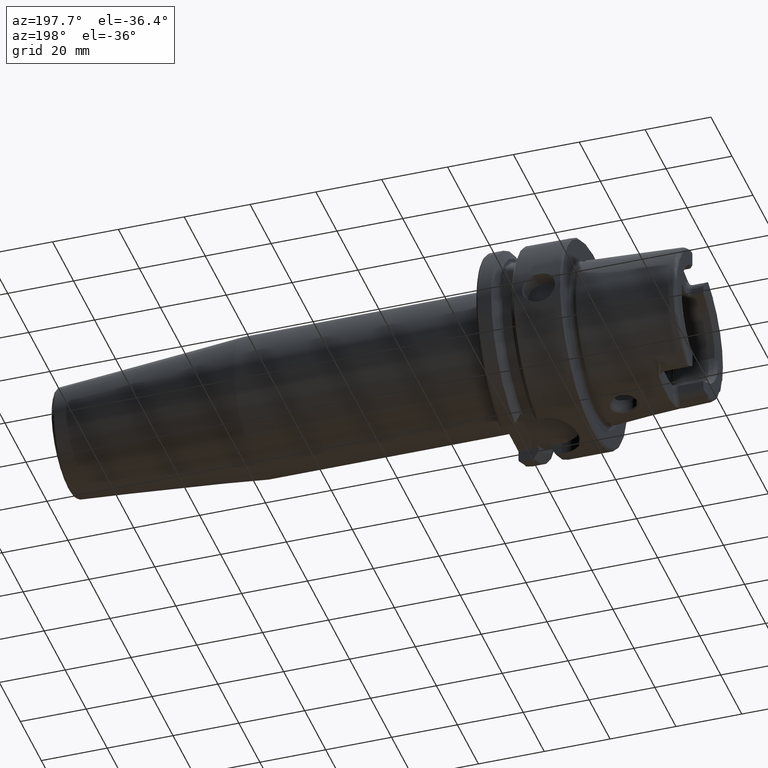
[diagram: clean part render]
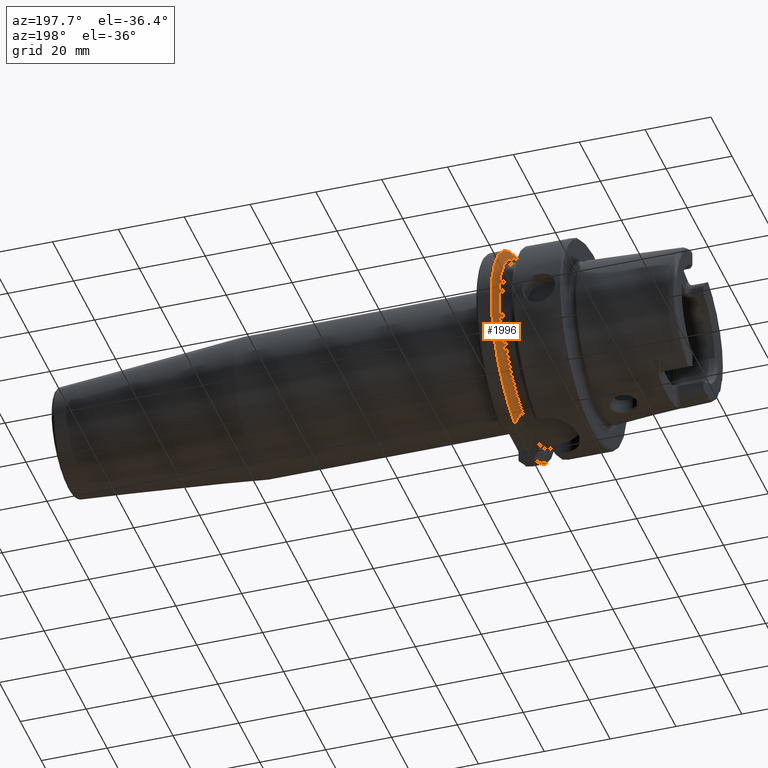
[diagram: same view with one face highlighted and labeled with its STEP entity id]
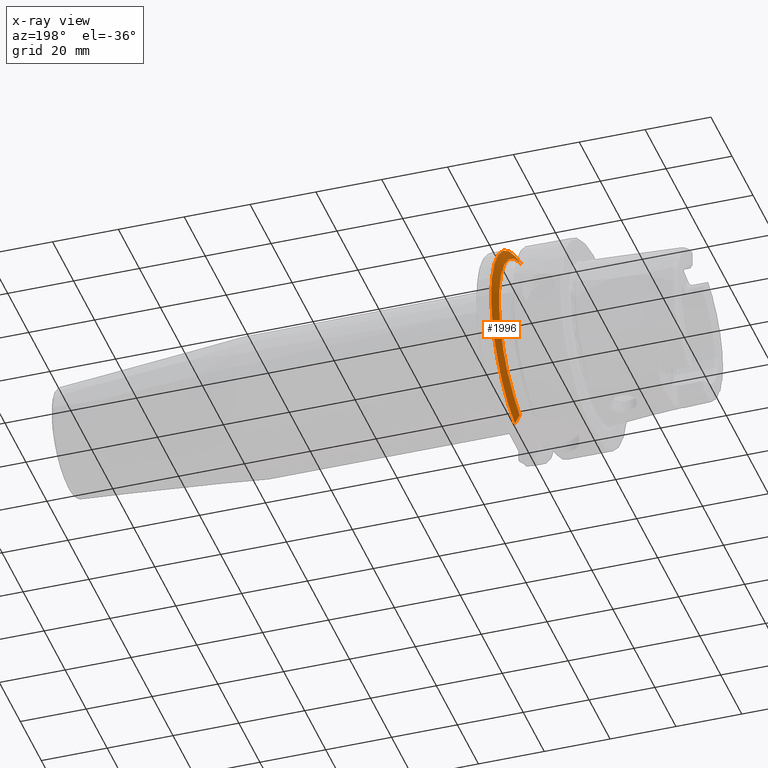
[diagram: x-ray of the same camera — body ghosted, the highlighted face saturated]
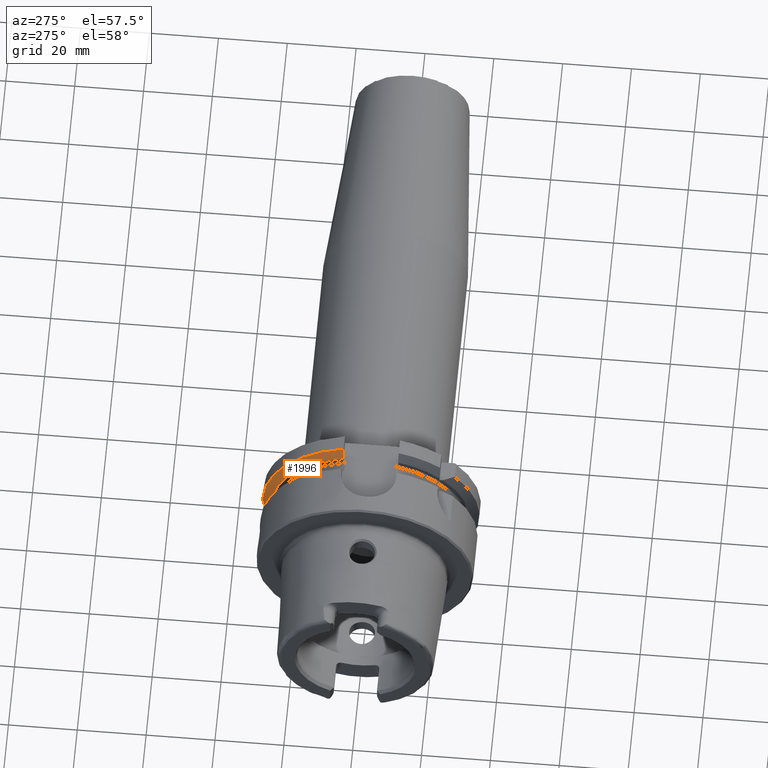
[diagram: same view with one face highlighted and labeled with its STEP entity id]
A machine part, auxiliary view. The second image highlights one B-rep face of the part: STEP entity #1996.
The next image is the same camera in x-ray: the body ghosted, the highlighted face saturated — about 0% of this face is hidden behind the body in this view.
A second angle (auxiliary view) of the same face is appended — the face is thin or edge-on in the first view.
In plain terms, the highlighted conical surface has half-angle 60 deg.
Its self-contained STEP definition (entity closure, byte-faithful):
#24=(
BOUNDED_CURVE()
B_SPLINE_CURVE(2,(#3915,#3916,#3917),.UNSPECIFIED.,.F.,.F.)
B_SPLINE_CURVE_WITH_KNOTS((3,3),(0.,0.311314369989023),.UNSPECIFIED.)
CURVE()
GEOMETRIC_REPRESENTATION_ITEM()
RATIONAL_B_SPLINE_CURVE((1.,1.00102053193238,1.))
REPRESENTATION_ITEM('')
);
#27=(
BOUNDED_CURVE()
B_SPLINE_CURVE(2,(#4112,#4113,#4114),.UNSPECIFIED.,.F.,.F.)
B_SPLINE_CURVE_WITH_KNOTS((3,3),(0.,0.308905667770379),.UNSPECIFIED.)
CURVE()
GEOMETRIC_REPRESENTATION_ITEM()
RATIONAL_B_SPLINE_CURVE((1.,1.00099999355179,1.))
REPRESENTATION_ITEM('')
);
#271=FACE_OUTER_BOUND('',#393,.T.);
#393=EDGE_LOOP('',(#1647,#1648,#1649,#1650));
#732=CIRCLE('',#2208,31.5);
#736=CIRCLE('',#2216,28.8975952641916);
#918=VERTEX_POINT('',#3912);
#919=VERTEX_POINT('',#3914);
#945=VERTEX_POINT('',#4096);
#948=VERTEX_POINT('',#4110);
#1164=EDGE_CURVE('',#919,#918,#24,.T.);
#1204=EDGE_CURVE('',#919,#945,#732,.T.);
#1211=EDGE_CURVE('',#918,#948,#736,.T.);
#1212=EDGE_CURVE('',#948,#945,#27,.T.);
#1647=ORIENTED_EDGE('',*,*,#1164,.T.);
#1648=ORIENTED_EDGE('',*,*,#1211,.T.);
#1649=ORIENTED_EDGE('',*,*,#1212,.T.);
#1650=ORIENTED_EDGE('',*,*,#1204,.F.);
#1923=CONICAL_SURFACE('',#2215,30.1987976320958,1.0471975511966);
#1996=ADVANCED_FACE('',(#271),#1923,.T.);
#2208=AXIS2_PLACEMENT_3D('',#4097,#2671,#2672);
#2215=AXIS2_PLACEMENT_3D('',#4109,#2688,#2689);
#2216=AXIS2_PLACEMENT_3D('',#4111,#2690,#2691);
#2671=DIRECTION('center_axis',(1.,0.,0.));
#2672=DIRECTION('ref_axis',(0.,0.,-1.));
#2688=DIRECTION('center_axis',(1.,0.,0.));
#2689=DIRECTION('ref_axis',(0.,1.,0.));
#2690=DIRECTION('center_axis',(1.,0.,0.));
#2691=DIRECTION('ref_axis',(0.,0.,-1.));
#3912=CARTESIAN_POINT('',(19.875,9.,-27.4603534582684));
#3914=CARTESIAN_POINT('',(21.3774990747593,9.,-30.1869176962472));
#3915=CARTESIAN_POINT('Ctrl Pts',(21.3774990747593,9.,-30.1869176962472));
#3916=CARTESIAN_POINT('Ctrl Pts',(20.5907174110267,9.,-28.7648946319029));
#3917=CARTESIAN_POINT('Ctrl Pts',(19.875,9.,-27.4603534582684));
#4096=CARTESIAN_POINT('',(21.3774990747593,8.,30.4671954731642));
#4097=CARTESIAN_POINT('Origin',(21.3774990747593,0.,0.));
#4109=CARTESIAN_POINT('Origin',(20.6262495373797,0.,0.));
#4110=CARTESIAN_POINT('',(19.875,8.,27.7681654426977));
#4111=CARTESIAN_POINT('Origin',(19.875,0.,0.));
#4112=CARTESIAN_POINT('Ctrl Pts',(19.875,8.,27.7681654426977));
#4113=CARTESIAN_POINT('Ctrl Pts',(20.5914314297926,8.,29.0595327079868));
#4114=CARTESIAN_POINT('Ctrl Pts',(21.3774990747593,8.,30.4671954731642));